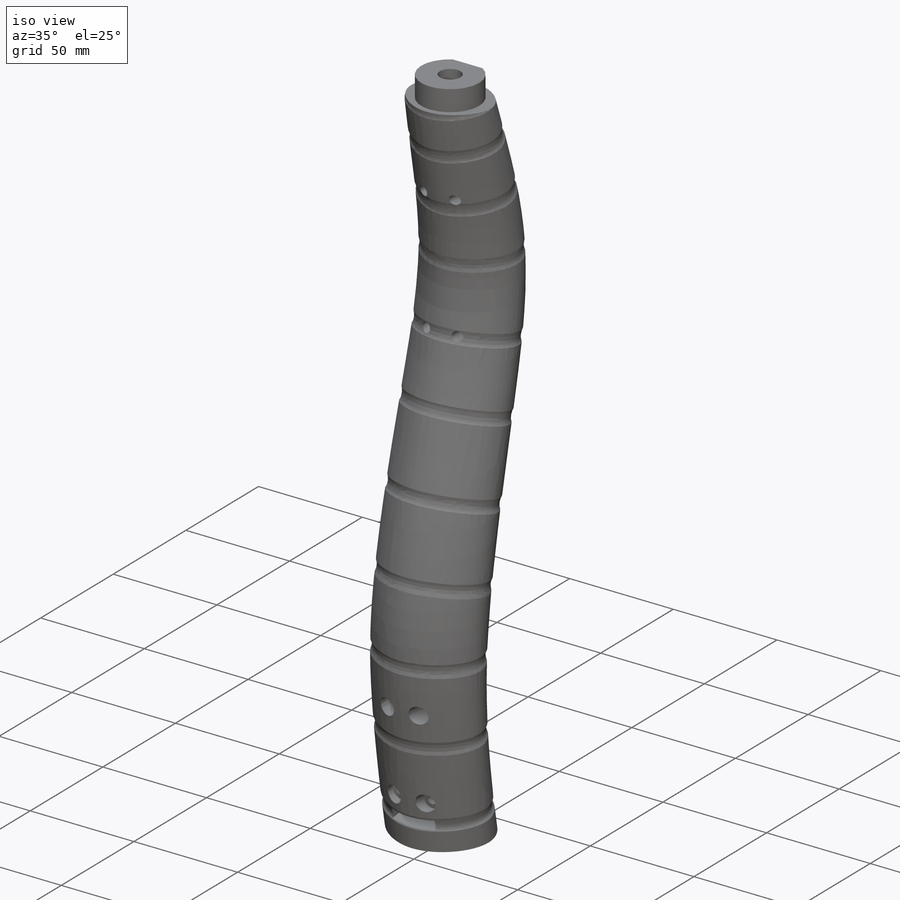
[diagram: iso view]
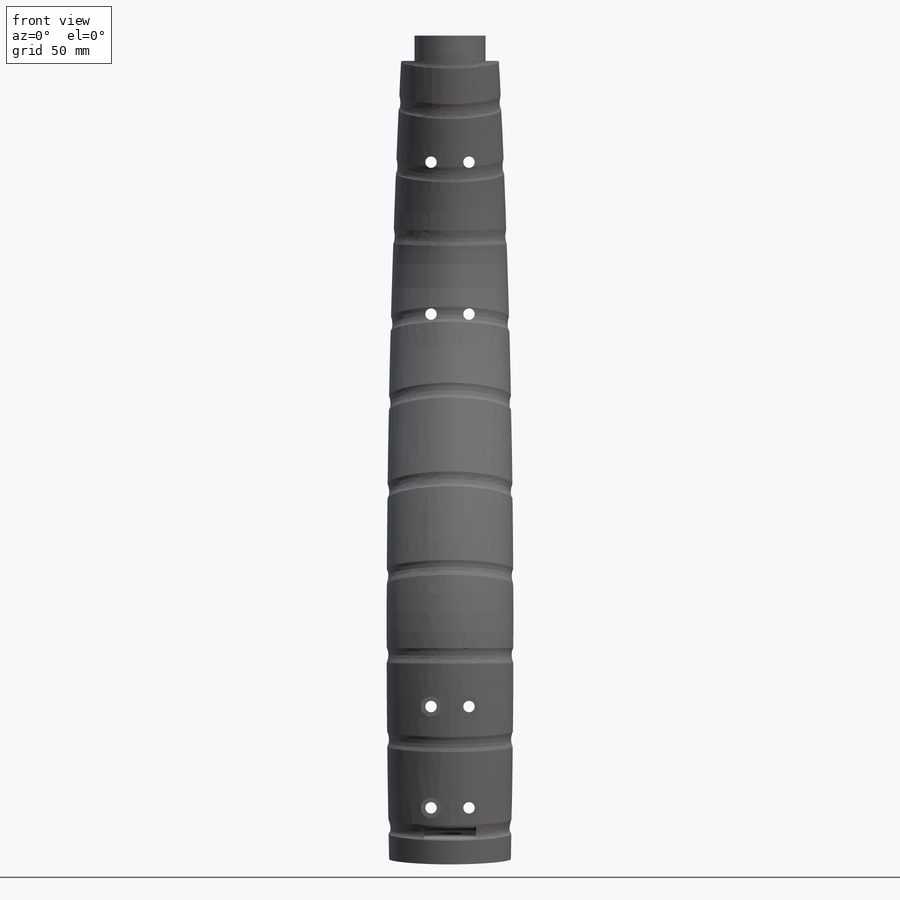
[diagram: front view]
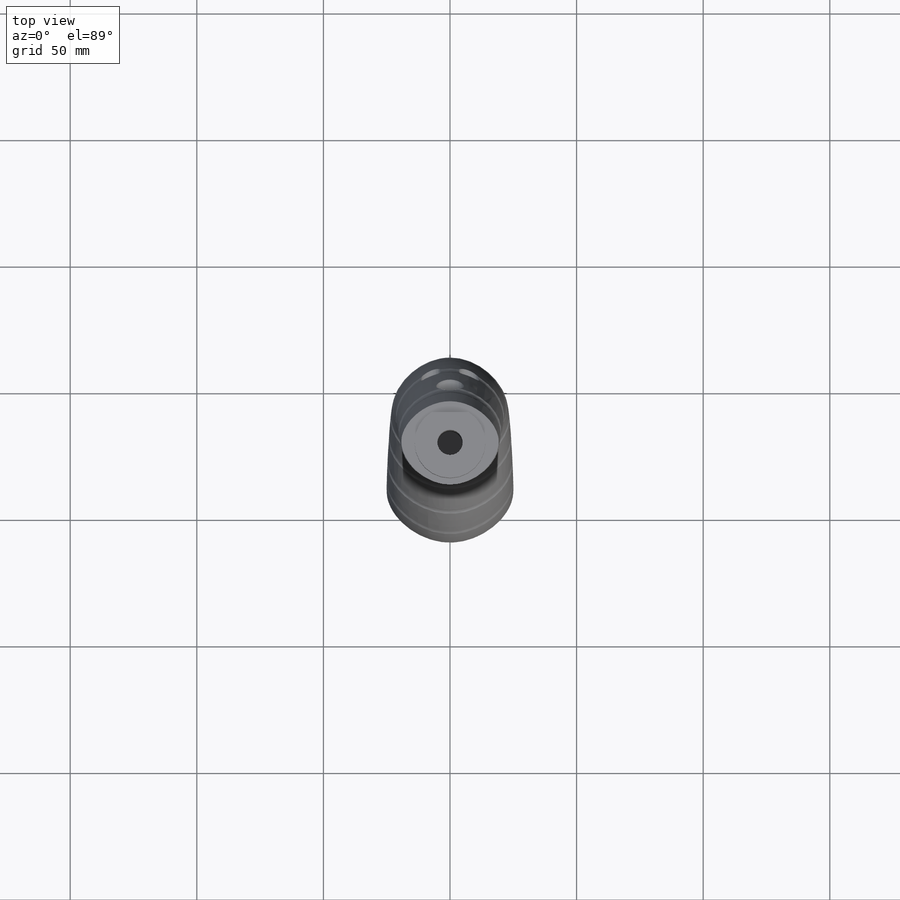
[diagram: top view]
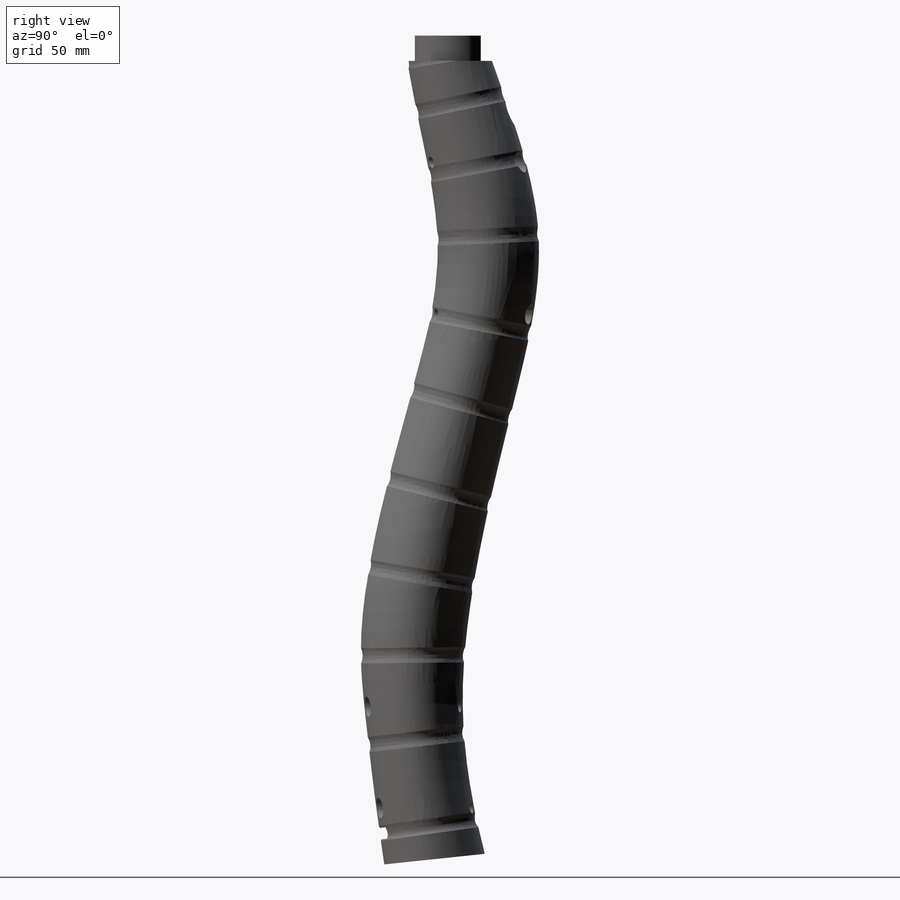
[diagram: right view]
SOLIDWORKS PART (.sldprt)
format: sldprt  version: not decoded by parser v0  size: 5,013,504 bytes
history: native  units: mm
features: sketch x26, surface_op x15, cut_revolve x7, plane x3, delete_body x2, cut_extrude x2, material x1, move_body x1, mirror x1, chamfer x1, extrude x1 + 2 further entries (+60 scaffold rows collapsed; 3 parser-record rows omitted)
feature tree (125):
  scaffold x60  (default folders/planes/origin — collapsed)
  material  "Material <nicht festgelegt>"
  plane  "Vorne"
  "p-vorlage-skelett-design-v02"
  parser-record x3  (decoder bookkeeping rows leaked as tree rows — omitted from the tree; the rows remain in map.json)
  move_body  "Körper-Verschieben/Kopieren2"
  "Deckungsgleich1"
  plane  "Deckungsgleich2"
  plane  "Deckungsgleich3"
  delete_body  "Körper-Löschen1"
  delete_body  "Körper-Löschen2"
  sketch  "Skizze1"
  sketch  "Skizze3"
  sketch  "Skizze4"
  sketch  "Skizze5"
  sketch  "Skizze6"
  sketch  "Skizze7"
  sketch  "Skizze8"
  sketch  "Skizze9"
  sketch  "Skizze10"
  surface_op  "Oberfläche-Austragung4"
  surface_op  "Oberfläche-Austragung5"
  surface_op  "Oberfläche-Austragung6"
  surface_op  "Oberfläche-Austragung7"
  surface_op  "Oberfläche-Austragung8"
  surface_op  "Oberfläche-Austragung9"
  surface_op  "Oberfläche-Austragung10"
  surface_op  "Oberfläche-Austragung11"
  surface_op  "Oberfläche-Austragung12"
  sketch  "Skizze1<3>"
  surface_op  "Oberfläche-Austragung13"
  sketch  "Skizze1<4>"
  surface_op  "Oberfläche-Austragung14"
  sketch  "Skizze1<6>"
  surface_op  "Oberfläche-Austragung15"
  sketch  "Skizze1<7>"
  surface_op  "Oberfläche-Austragung16"
  sketch  "Skizze1<8>"
  surface_op  "Oberfläche-Austragung17"
  sketch  "Skizze1<9>"
  sketch  "Oberflächenausfüllung2"
  surface_op  "Oberfläche-Zusammenfügen2"
  sketch  "Skizze32"  dims[D1=15.0mm D2=60.0mm D3=200.0mm D4=40.0mm D5=20.0mm D6=85.0mm D7=4.5mm D8=8.0mm D9=14.0mm D10=45.0mm D11=45.0mm D12=2.0mm D13=2.0mm D14=8.0mm D15=4.5mm D16=330.0mm]
  cut_revolve  "Schnitt-Rotation1"  Angle=360deg
  cut_revolve  "Schnitt-Rotation2"  [1 undecoded]
  sketch  "Skizze32<3>"  dims[D1=360.0deg]
  cut_revolve  "Schnitt-Rotation3"  [1 undecoded]
  sketch  "Skizze32<4>"  dims[D1=360.0deg]
  cut_revolve  "Schnitt-Rotation4"  [1 undecoded]
  sketch  "Skizze32<5>"  dims[D1=360.0deg]
  mirror  "Spiegeln2"
  sketch  "Skizze33"  dims[c1.D1=~157.319589mm c2.D1=~170.385012deg c3.D1=~157.319589mm c4.D1=8.0deg c4.D2=55.0mm]
  cut_extrude  "Schnitt-Linear austragen1"  Depth=100mm
  sketch  "Skizze35"  dims[c1.D1=25.0mm c1.D2=3.0mm c2.D1=10.0mm c2.D2=30.0mm c2.D3=33.0mm c3.D2=30.0mm c3.D3=32.8mm c3.D1=30.0mm c4.D2=10.0mm]
  cut_revolve  "Schnitt-Rotation6"  Angle=360deg
  sketch  "Skizze38"  dims[c1.D1=~35.592273mm c2.D1=6.0deg c2.D2=10.0mm c2.D3=15.0mm c2.D4=5.0mm c2.D5=50.0mm c2.D6=80.0mm]
  cut_revolve  "Schnitt-Rotation7"  Angle=360deg
  sketch  "Skizze39"  dims[D1=4.5mm D2=20.5mm D3=10.0mm]
  cut_extrude  "Schnitt-Linear austragen2"  Depth=60mm
  chamfer  "Fase1"  Distance=0.7mm Angle=45deg
  sketch  "Skizze40"  dims[D1=28.0mm D2=12.0mm]
  extrude  "Aufsatz-Linear austragen1"  Depth=10mm
  sketch  "Skizze41"  dims[D1=30.0mm D2=6.0mm D3=11.0mm D4=30.0mm D5=15.0mm D6=25.0mm]
  cut_revolve  "Schnitt-Rotation9"  Angle=360deg
decode coverage: 18 of 56 modeling features carry decoded parameters; 2 rows unclassified (native names shown)
note: ~ marks probable driven/reference dimensions
note: 3 parameter values undecoded
summary: no parameter record found for 3 features
note: suppression state not decoded; provenance and decode notes live in map.json
